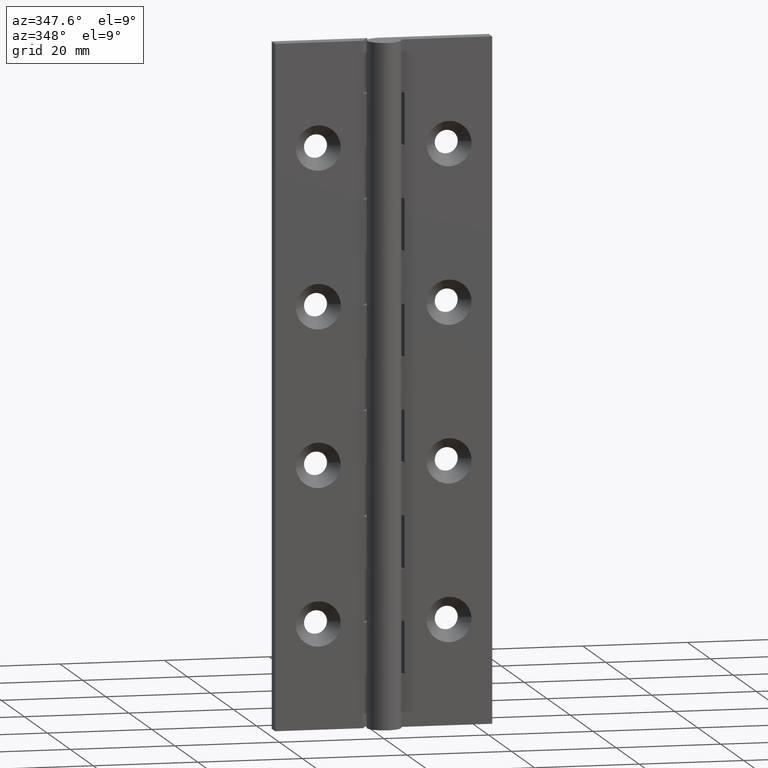
[diagram: clean part render]
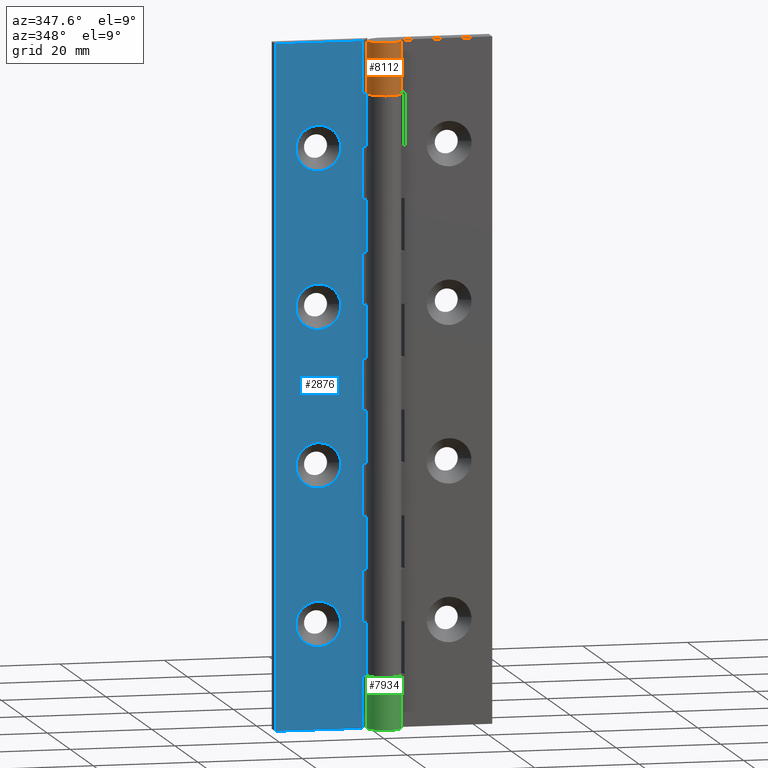
[diagram: same view with three faces highlighted in distinct colors, each labeled with its STEP entity id]
A machine part, auxiliary view with three faces highlighted in distinct colors.
Their STEP definitions:

[orange] entity #8112 — the highlighted face is a freeform B-spline surface patch.
#7731=CARTESIAN_POINT('',(3.250002000000000,0.0,119.999992000000010));
#7732=VERTEX_POINT('',#7731);
#7738=CARTESIAN_POINT('',(-5.969960E-016,3.250002000000000,119.999992000000010));
#7739=VERTEX_POINT('',#7738);
#7740=CARTESIAN_POINT('',(3.250002000000000,0.0,119.999992000000010));
#7741=CARTESIAN_POINT('',(3.250058843332602,-0.259235302768762,119.999992000000110));
#7742=CARTESIAN_POINT('',(3.194825938066627,-0.717862371413095,119.999991999999910));
#7743=CARTESIAN_POINT('',(2.960307660972153,-1.399606626254420,119.999992000000010));
#7744=CARTESIAN_POINT('',(2.545271396372375,-2.087556985835470,119.999992000000300));
#7745=CARTESIAN_POINT('',(1.911104825736447,-2.680283610159983,119.999991999998800));
#7746=CARTESIAN_POINT('',(1.125314587372286,-3.084798384035770,119.999992000001700));
#7747=CARTESIAN_POINT('',(0.400465609230191,-3.252218828666733,119.999991999999590));
#7748=CARTESIAN_POINT('',(-0.340493696966024,-3.256763602635062,119.999992000000400));
#7749=CARTESIAN_POINT('',(-0.989311126380403,-3.121482943577707,119.999991999999590));
#7750=CARTESIAN_POINT('',(-1.630139797581052,-2.837422052406377,119.999992000001000));
#7751=CARTESIAN_POINT('',(-2.120104957851495,-2.487814744809354,119.999991999999590));
#7752=CARTESIAN_POINT('',(-2.605826835977128,-1.983920769138647,119.999992000000200));
#7753=CARTESIAN_POINT('',(-3.030538727554097,-1.299677062303959,119.999991999999910));
#7754=CARTESIAN_POINT('',(-3.254240107487775,-0.460979936820447,119.999992000000110));
#7755=CARTESIAN_POINT('',(-3.256751942191720,0.380876257646216,119.999992000000010));
#7756=CARTESIAN_POINT('',(-3.084785001923860,1.125320745129792,119.999992000000300));
#7757=CARTESIAN_POINT('',(-2.680284794799579,1.911094221658586,119.999991999998200));
#7758=CARTESIAN_POINT('',(-2.046206700656675,2.589555788824574,119.999992000004000));
#7759=CARTESIAN_POINT('',(-1.116547263682331,3.116166636429339,119.999991999993800));
#7760=CARTESIAN_POINT('',(-0.398857979851053,3.250314064122798,119.999992000004800));
#7761=CARTESIAN_POINT('',(-5.969960E-016,3.250002000000000,119.999992000000010));
#7762=B_SPLINE_CURVE_WITH_KNOTS('',3,(#7740,#7741,#7742,#7743,#7744,#7745,#7746,#7747,#7748,#7749,#7750,#7751,#7752,#7753,#7754,#7755,#7756,#7757,#7758,#7759,#7760,#7761),.UNSPECIFIED.,.F.,.U.,(4,1,1,1,1,1,1,1,1,1,1,1,1,1,1,1,1,1,1,4),(0.000000900584890,0.777703323954160,1.375992129447301,2.153742879414933,3.170818852364903,3.948589965534355,4.786138993302330,5.384268576442519,6.162084416961495,6.760345081089699,7.478265212542495,7.956891529606531,8.854286972125300,9.871396629287062,10.529355977866320,11.366905111373571,12.144676255318450,13.161752748301369,14.118989412042550,15.315489814298481),.UNSPECIFIED.);
#7763=EDGE_CURVE('',#7732,#7739,#7762,.T.);
#7977=CARTESIAN_POINT('',(0.0,3.250002000000000,129.999991999999990));
#7978=VERTEX_POINT('',#7977);
#7984=CARTESIAN_POINT('',(3.250002000000000,0.0,129.999991999999990));
#7985=VERTEX_POINT('',#7984);
#7986=CARTESIAN_POINT('',(3.250002000000000,0.0,129.999991999999990));
#7987=CARTESIAN_POINT('',(3.250126541722850,-0.299119722925987,129.999992000000110));
#7988=CARTESIAN_POINT('',(3.186197574069851,-0.757699251531633,129.999991999999990));
#7989=CARTESIAN_POINT('',(2.946400268119132,-1.415196659680788,129.999991999999990));
#7990=CARTESIAN_POINT('',(2.599350185887110,-2.002525152513127,129.999992000000190));
#7991=CARTESIAN_POINT('',(2.093768571570589,-2.520616741313822,129.999991999999910));
#7992=CARTESIAN_POINT('',(1.506173649387451,-2.902809131635596,129.999991999999710));
#7993=CARTESIAN_POINT('',(0.836997744517684,-3.172911026107978,129.999992000000300));
#7994=CARTESIAN_POINT('',(0.099854855614900,-3.279903515339398,129.999992000000700));
#7995=CARTESIAN_POINT('',(-0.658352653947962,-3.207508463732577,129.999991999998600));
#7996=CARTESIAN_POINT('',(-1.251255185720932,-3.019682219946772,129.999992000000700));
#7997=CARTESIAN_POINT('',(-1.833224422317379,-2.708625678912956,129.999991999999910));
#7998=CARTESIAN_POINT('',(-2.331329212527613,-2.302423923799751,129.999992000000190));
#7999=CARTESIAN_POINT('',(-2.752226277715315,-1.766394148818207,129.999992000000110));
#8000=CARTESIAN_POINT('',(-3.080388055418496,-1.124417290567918,129.999991999999990));
#8001=CARTESIAN_POINT('',(-3.278595046428000,-0.323149294122056,129.999992000000110));
#8002=CARTESIAN_POINT('',(-3.241277538660847,0.542849693962500,129.999991999999990));
#8003=CARTESIAN_POINT('',(-3.009471734798527,1.290185554690569,129.999992000000390));
#8004=CARTESIAN_POINT('',(-2.626328112624008,1.971588136563843,129.999991999997290));
#8005=CARTESIAN_POINT('',(-2.028648254991396,2.599494082073933,129.999992000005790));
#8006=CARTESIAN_POINT('',(-1.116531277858881,3.116148526395587,129.999991999993110));
#8007=CARTESIAN_POINT('',(-0.398864664119787,3.250321222643124,129.999992000005590));
#8008=CARTESIAN_POINT('',(0.0,3.250002000000000,129.999991999999990));
#8009=B_SPLINE_CURVE_WITH_KNOTS('',3,(#7986,#7987,#7988,#7989,#7990,#7991,#7992,#7993,#7994,#7995,#7996,#7997,#7998,#7999,#8000,#8001,#8002,#8003,#8004,#8005,#8006,#8007,#8008),.UNSPECIFIED.,.F.,.U.,(4,1,1,1,1,1,1,1,1,1,1,1,1,1,1,1,1,1,1,1,4),(0.000000900584890,0.897318631712899,1.375992129447301,2.093900663776164,2.931496390251940,3.529787072808482,4.187902412925640,5.085294728259846,5.743301267278270,6.461170030126993,6.939831677601783,7.717575318248597,8.375695493262104,8.973980995145013,9.871396629287062,10.828505386619740,11.546389729966560,12.204517336434190,13.161752748301369,14.118989412042550,15.315489814298481),.UNSPECIFIED.);
#8010=EDGE_CURVE('',#7985,#7978,#8009,.T.);
#8065=CARTESIAN_POINT('',(3.250002000000000,0.0,119.999992000000010));
#8066=CARTESIAN_POINT('',(3.250002000000000,0.0,129.999991999999990));
#8067=QUASI_UNIFORM_CURVE('',1,(#8065,#8066),.UNSPECIFIED.,.F.,.U.);
#8068=EDGE_CURVE('',#7732,#7985,#8067,.T.);
#8080=CARTESIAN_POINT('',(3.248888305485210,0.085075134354485,119.749992000000010));
#8081=CARTESIAN_POINT('',(3.248888305485210,0.085075134354485,130.256241999999990));
#8082=CARTESIAN_POINT('',(3.336986186059084,-3.279247192095126,119.749991999999990));
#8083=CARTESIAN_POINT('',(3.336986186059084,-3.279247192095126,130.256242000000040));
#8084=CARTESIAN_POINT('',(-0.028361257822785,-3.249878249882402,119.749992000000010));
#8085=CARTESIAN_POINT('',(-0.028361257822785,-3.249878249882402,130.256241999999990));
#8086=CARTESIAN_POINT('',(-3.393708701704655,-3.220509307669678,119.749991999999990));
#8087=CARTESIAN_POINT('',(-3.393708701704655,-3.220509307669678,130.256242000000040));
#8088=CARTESIAN_POINT('',(-3.246908718237480,0.141763096176115,119.749992000000010));
#8089=CARTESIAN_POINT('',(-3.246908718237480,0.141763096176115,130.256241999999990));
#8090=CARTESIAN_POINT('',(-3.100108734770305,3.504035500021907,119.749991999999990));
#8091=CARTESIAN_POINT('',(-3.100108734770305,3.504035500021907,130.256242000000040));
#8092=CARTESIAN_POINT('',(0.254992218033685,3.239983328467333,119.749992000000010));
#8093=CARTESIAN_POINT('',(0.254992218033685,3.239983328467333,130.256241999999990));
#8101=(BOUNDED_SURFACE()B_SPLINE_SURFACE(1,2,((#8080,#8082,#8084,#8086,#8088,#8090,#8092),(#8081,#8083,#8085,#8087,#8089,#8091,#8093)),.UNSPECIFIED.,.F.,.F.,.U.)B_SPLINE_SURFACE_WITH_KNOTS((2,2),(3,2,2,3),(0.0,10.506250000000049),(0.0,5.518176006523390,11.036352013046780,16.554528019570171),.UNSPECIFIED.)GEOMETRIC_REPRESENTATION_ITEM()RATIONAL_B_SPLINE_SURFACE(((1.0,0.694658370458997,1.0,0.694658370458997,1.0,0.694658370458997,1.0),(1.0,0.694658370458997,1.0,0.694658370458997,1.0,0.694658370458997,1.0)))REPRESENTATION_ITEM('')SURFACE());
#8102=ORIENTED_EDGE('',*,*,#7763,.F.);
#8103=ORIENTED_EDGE('',*,*,#8068,.T.);
#8104=ORIENTED_EDGE('',*,*,#8010,.T.);
#8105=CARTESIAN_POINT('',(-5.969960E-016,3.250002000000000,119.999992000000010));
#8106=CARTESIAN_POINT('',(0.0,3.250002000000000,129.999991999999990));
#8107=QUASI_UNIFORM_CURVE('',1,(#8105,#8106),.UNSPECIFIED.,.F.,.U.);
#8108=EDGE_CURVE('',#7739,#7978,#8107,.T.);
#8109=ORIENTED_EDGE('',*,*,#8108,.F.);
#8110=EDGE_LOOP('',(#8102,#8103,#8104,#8109));
#8111=FACE_OUTER_BOUND('',#8110,.T.);
#8112=ADVANCED_FACE('',(#8111),#8101,.T.);

[blue] entity #2876 — the highlighted face is a freeform B-spline surface patch.
#248=CARTESIAN_POINT('',(-8.213247464866484,0.250001999797880,110.337366113177500));
#249=VERTEX_POINT('',#248);
#255=CARTESIAN_POINT('',(-12.499991999999899,0.250002000000000,114.299992000000400));
#256=VERTEX_POINT('',#255);
#257=CARTESIAN_POINT('',(-12.499991999999899,0.250002000000000,114.299992000000400));
#258=CARTESIAN_POINT('',(-8.525112887193302,0.250001999898940,114.299992000008330));
#259=CARTESIAN_POINT('',(-8.213247464866484,0.250001999797880,110.337366113177500));
#267=(BOUNDED_CURVE()B_SPLINE_CURVE(2,(#257,#258,#259),.UNSPECIFIED.,.F.,.U.)B_SPLINE_CURVE_WITH_KNOTS((3,3),(0.0,0.236331300571524),.UNSPECIFIED.)CURVE()GEOMETRIC_REPRESENTATION_ITEM()RATIONAL_B_SPLINE_CURVE((1.0,0.723120658676947,0.969723356044007))REPRESENTATION_ITEM(''));
#268=EDGE_CURVE('',#256,#249,#267,.T.);
#270=CARTESIAN_POINT('',(-16.786736535133318,0.250001999797881,109.662617886823300));
#271=VERTEX_POINT('',#270);
#272=CARTESIAN_POINT('',(-16.786736535133326,0.250001999797881,109.662617886823370));
#273=CARTESIAN_POINT('',(-16.799992000197740,0.250001999801551,109.831044539082530));
#274=CARTESIAN_POINT('',(-16.799992000193789,0.250001999805522,109.999991999985200));
#275=CARTESIAN_POINT('',(-16.799992000093045,0.250001999906582,114.299991999993100));
#276=CARTESIAN_POINT('',(-12.499991999999899,0.250002000000000,114.299992000000400));
#284=(BOUNDED_CURVE()B_SPLINE_CURVE(2,(#272,#273,#274,#275,#276),.UNSPECIFIED.,.F.,.U.)B_SPLINE_CURVE_WITH_KNOTS((3,2,3),(0.736331300571523,0.750000000000000,1.0),.UNSPECIFIED.)CURVE()GEOMETRIC_REPRESENTATION_ITEM()RATIONAL_B_SPLINE_CURVE((0.969723356044004,0.983986122509599,1.0,0.707106781186547,1.0))REPRESENTATION_ITEM(''));
#285=EDGE_CURVE('',#271,#256,#284,.T.);
#391=CARTESIAN_POINT('',(-12.499991999999899,0.250002000000000,105.699992000000410));
#392=VERTEX_POINT('',#391);
#393=CARTESIAN_POINT('',(-12.499991999999899,0.250002000000000,105.699992000000410));
#394=CARTESIAN_POINT('',(-16.474871112806493,0.250001999898941,105.699991999992480));
#395=CARTESIAN_POINT('',(-16.786736535133322,0.250001999797881,109.662617886823330));
#403=(BOUNDED_CURVE()B_SPLINE_CURVE(2,(#393,#394,#395),.UNSPECIFIED.,.F.,.U.)B_SPLINE_CURVE_WITH_KNOTS((3,3),(0.500000000000000,0.736331300571524),.UNSPECIFIED.)CURVE()GEOMETRIC_REPRESENTATION_ITEM()RATIONAL_B_SPLINE_CURVE((1.0,0.723120658676947,0.969723356044006))REPRESENTATION_ITEM(''));
#404=EDGE_CURVE('',#392,#271,#403,.T.);
#406=CARTESIAN_POINT('',(-8.213247464866484,0.250001999797880,110.337366113177410));
#407=CARTESIAN_POINT('',(-8.199991999802064,0.250001999801551,110.168939460918250));
#408=CARTESIAN_POINT('',(-8.199991999806022,0.250001999805522,109.999992000015690));
#409=CARTESIAN_POINT('',(-8.199991999906773,0.250001999906581,105.699992000007740));
#410=CARTESIAN_POINT('',(-12.499991999999899,0.250002000000000,105.699992000000410));
#418=(BOUNDED_CURVE()B_SPLINE_CURVE(2,(#406,#407,#408,#409,#410),.UNSPECIFIED.,.F.,.U.)B_SPLINE_CURVE_WITH_KNOTS((3,2,3),(0.236331300571524,0.250000000000000,0.500000000000000),.UNSPECIFIED.)CURVE()GEOMETRIC_REPRESENTATION_ITEM()RATIONAL_B_SPLINE_CURVE((0.969723356044007,0.983986122509601,1.0,0.707106781186547,1.0))REPRESENTATION_ITEM(''));
#419=EDGE_CURVE('',#249,#392,#418,.T.);
#584=CARTESIAN_POINT('',(-8.213247464866486,0.250001999797880,80.337366113177367));
#585=VERTEX_POINT('',#584);
#591=CARTESIAN_POINT('',(-12.499991999999899,0.250002000000000,84.299992000000316));
#592=VERTEX_POINT('',#591);
#593=CARTESIAN_POINT('',(-12.499991999999899,0.250002000000000,84.299992000000316));
#594=CARTESIAN_POINT('',(-8.525112887193318,0.250001999898940,84.299992000008245));
#595=CARTESIAN_POINT('',(-8.213247464866486,0.250001999797880,80.337366113177367));
#603=(BOUNDED_CURVE()B_SPLINE_CURVE(2,(#593,#594,#595),.UNSPECIFIED.,.F.,.U.)B_SPLINE_CURVE_WITH_KNOTS((3,3),(0.0,0.236331300571524),.UNSPECIFIED.)CURVE()GEOMETRIC_REPRESENTATION_ITEM()RATIONAL_B_SPLINE_CURVE((1.0,0.723120658676947,0.969723356044006))REPRESENTATION_ITEM(''));
#604=EDGE_CURVE('',#592,#585,#603,.T.);
#606=CARTESIAN_POINT('',(-16.786736535133318,0.250001999797881,79.662617886823256));
#607=VERTEX_POINT('',#606);
#608=CARTESIAN_POINT('',(-16.786736535133322,0.250001999797881,79.662617886823256));
#609=CARTESIAN_POINT('',(-16.799992000197737,0.250001999801552,79.831044539082498));
#610=CARTESIAN_POINT('',(-16.799992000193779,0.250001999805523,79.999991999985070));
#611=CARTESIAN_POINT('',(-16.799992000093027,0.250001999906582,84.299991999992997));
#612=CARTESIAN_POINT('',(-12.499991999999899,0.250002000000000,84.299992000000316));
#620=(BOUNDED_CURVE()B_SPLINE_CURVE(2,(#608,#609,#610,#611,#612),.UNSPECIFIED.,.F.,.U.)B_SPLINE_CURVE_WITH_KNOTS((3,2,3),(0.736331300571525,0.750000000000000,1.0),.UNSPECIFIED.)CURVE()GEOMETRIC_REPRESENTATION_ITEM()RATIONAL_B_SPLINE_CURVE((0.969723356044008,0.983986122509601,1.0,0.707106781186547,1.0))REPRESENTATION_ITEM(''));
#621=EDGE_CURVE('',#607,#592,#620,.T.);
#727=CARTESIAN_POINT('',(-12.499991999999899,0.250002000000000,75.699992000000307));
#728=VERTEX_POINT('',#727);
#729=CARTESIAN_POINT('',(-12.499991999999899,0.250002000000000,75.699992000000307));
#730=CARTESIAN_POINT('',(-16.474871112806518,0.250001999898941,75.699991999992363));
#731=CARTESIAN_POINT('',(-16.786736535133315,0.250001999797881,79.662617886823256));
#739=(BOUNDED_CURVE()B_SPLINE_CURVE(2,(#729,#730,#731),.UNSPECIFIED.,.F.,.U.)B_SPLINE_CURVE_WITH_KNOTS((3,3),(0.500000000000000,0.736331300571525),.UNSPECIFIED.)CURVE()GEOMETRIC_REPRESENTATION_ITEM()RATIONAL_B_SPLINE_CURVE((1.0,0.723120658676946,0.969723356044008))REPRESENTATION_ITEM(''));
#740=EDGE_CURVE('',#728,#607,#739,.T.);
#742=CARTESIAN_POINT('',(-8.213247464866486,0.250001999797880,80.337366113177367));
#743=CARTESIAN_POINT('',(-8.199991999802064,0.250001999801551,80.168939460918125));
#744=CARTESIAN_POINT('',(-8.199991999806024,0.250001999805522,79.999992000015538));
#745=CARTESIAN_POINT('',(-8.199991999906773,0.250001999906581,75.699992000007626));
#746=CARTESIAN_POINT('',(-12.499991999999899,0.250002000000000,75.699992000000307));
#754=(BOUNDED_CURVE()B_SPLINE_CURVE(2,(#742,#743,#744,#745,#746),.UNSPECIFIED.,.F.,.U.)B_SPLINE_CURVE_WITH_KNOTS((3,2,3),(0.236331300571524,0.250000000000000,0.500000000000000),.UNSPECIFIED.)CURVE()GEOMETRIC_REPRESENTATION_ITEM()RATIONAL_B_SPLINE_CURVE((0.969723356044006,0.983986122509600,1.0,0.707106781186547,1.0))REPRESENTATION_ITEM(''));
#755=EDGE_CURVE('',#585,#728,#754,.T.);
#920=CARTESIAN_POINT('',(-8.213247464866488,0.250001999797881,50.337366113177161));
#921=VERTEX_POINT('',#920);
#927=CARTESIAN_POINT('',(-12.499991999999899,0.250002000000000,54.299992000000103));
#928=VERTEX_POINT('',#927);
#929=CARTESIAN_POINT('',(-12.499991999999899,0.250002000000000,54.299992000000103));
#930=CARTESIAN_POINT('',(-8.525112887193311,0.250001999898941,54.299992000008011));
#931=CARTESIAN_POINT('',(-8.213247464866488,0.250001999797881,50.337366113177161));
#939=(BOUNDED_CURVE()B_SPLINE_CURVE(2,(#929,#930,#931),.UNSPECIFIED.,.F.,.U.)B_SPLINE_CURVE_WITH_KNOTS((3,3),(0.0,0.236331300571524),.UNSPECIFIED.)CURVE()GEOMETRIC_REPRESENTATION_ITEM()RATIONAL_B_SPLINE_CURVE((1.0,0.723120658676947,0.969723356044006))REPRESENTATION_ITEM(''));
#940=EDGE_CURVE('',#928,#921,#939,.T.);
#942=CARTESIAN_POINT('',(-16.786736535133318,0.250001999797881,49.662617886823028));
#943=VERTEX_POINT('',#942);
#944=CARTESIAN_POINT('',(-16.786736535133318,0.250001999797881,49.662617886823035));
#945=CARTESIAN_POINT('',(-16.799992000197729,0.250001999801551,49.831044539082257));
#946=CARTESIAN_POINT('',(-16.799992000193779,0.250001999805522,49.999991999984843));
#947=CARTESIAN_POINT('',(-16.799992000093027,0.250001999906581,54.299991999992756));
#948=CARTESIAN_POINT('',(-12.499991999999899,0.250002000000000,54.299992000000103));
#956=(BOUNDED_CURVE()B_SPLINE_CURVE(2,(#944,#945,#946,#947,#948),.UNSPECIFIED.,.F.,.U.)B_SPLINE_CURVE_WITH_KNOTS((3,2,3),(0.736331300571524,0.750000000000000,1.0),.UNSPECIFIED.)CURVE()GEOMETRIC_REPRESENTATION_ITEM()RATIONAL_B_SPLINE_CURVE((0.969723356044007,0.983986122509600,1.0,0.707106781186547,1.0))REPRESENTATION_ITEM(''));
#957=EDGE_CURVE('',#943,#928,#956,.T.);
#1063=CARTESIAN_POINT('',(-12.499991999999899,0.250002000000000,45.699992000000101));
#1064=VERTEX_POINT('',#1063);
#1065=CARTESIAN_POINT('',(-12.499991999999899,0.250002000000000,45.699992000000101));
#1066=CARTESIAN_POINT('',(-16.474871112806490,0.250001999898940,45.699991999992164));
#1067=CARTESIAN_POINT('',(-16.786736535133315,0.250001999797880,49.662617886823021));
#1075=(BOUNDED_CURVE()B_SPLINE_CURVE(2,(#1065,#1066,#1067),.UNSPECIFIED.,.F.,.U.)B_SPLINE_CURVE_WITH_KNOTS((3,3),(0.500000000000000,0.736331300571524),.UNSPECIFIED.)CURVE()GEOMETRIC_REPRESENTATION_ITEM()RATIONAL_B_SPLINE_CURVE((1.0,0.723120658676947,0.969723356044006))REPRESENTATION_ITEM(''));
#1076=EDGE_CURVE('',#1064,#943,#1075,.T.);
#1078=CARTESIAN_POINT('',(-8.213247464866488,0.250001999797881,50.337366113177161));
#1079=CARTESIAN_POINT('',(-8.199991999802066,0.250001999801551,50.168939460917926));
#1080=CARTESIAN_POINT('',(-8.199991999806024,0.250001999805522,49.999992000015347));
#1081=CARTESIAN_POINT('',(-8.199991999906773,0.250001999906582,45.699992000007413));
#1082=CARTESIAN_POINT('',(-12.499991999999899,0.250002000000000,45.699992000000101));
#1090=(BOUNDED_CURVE()B_SPLINE_CURVE(2,(#1078,#1079,#1080,#1081,#1082),.UNSPECIFIED.,.F.,.U.)B_SPLINE_CURVE_WITH_KNOTS((3,2,3),(0.236331300571524,0.250000000000000,0.500000000000000),.UNSPECIFIED.)CURVE()GEOMETRIC_REPRESENTATION_ITEM()RATIONAL_B_SPLINE_CURVE((0.969723356044007,0.983986122509600,1.0,0.707106781186547,1.0))REPRESENTATION_ITEM(''));
#1091=EDGE_CURVE('',#921,#1064,#1090,.T.);
#1256=CARTESIAN_POINT('',(-8.213247464866484,0.250001999797880,20.337366113176959));
#1257=VERTEX_POINT('',#1256);
#1263=CARTESIAN_POINT('',(-12.499991999999899,0.250002000000000,24.299991999999900));
#1264=VERTEX_POINT('',#1263);
#1265=CARTESIAN_POINT('',(-12.499991999999899,0.250002000000000,24.299991999999900));
#1266=CARTESIAN_POINT('',(-8.525112887193300,0.250001999898940,24.299992000007840));
#1267=CARTESIAN_POINT('',(-8.213247464866484,0.250001999797880,20.337366113176952));
#1275=(BOUNDED_CURVE()B_SPLINE_CURVE(2,(#1265,#1266,#1267),.UNSPECIFIED.,.F.,.U.)B_SPLINE_CURVE_WITH_KNOTS((3,3),(0.0,0.236331300571525),.UNSPECIFIED.)CURVE()GEOMETRIC_REPRESENTATION_ITEM()RATIONAL_B_SPLINE_CURVE((1.0,0.723120658676946,0.969723356044008))REPRESENTATION_ITEM(''));
#1276=EDGE_CURVE('',#1264,#1257,#1275,.T.);
#1278=CARTESIAN_POINT('',(-16.786736535133318,0.250001999797880,19.662617886822840));
#1279=VERTEX_POINT('',#1278);
#1280=CARTESIAN_POINT('',(-16.786736535133326,0.250001999797880,19.662617886822837));
#1281=CARTESIAN_POINT('',(-16.799992000197737,0.250001999801550,19.831044539082065));
#1282=CARTESIAN_POINT('',(-16.799992000193779,0.250001999805521,19.999991999984641));
#1283=CARTESIAN_POINT('',(-16.799992000093027,0.250001999906581,24.299991999992571));
#1284=CARTESIAN_POINT('',(-12.499991999999899,0.250002000000000,24.299991999999900));
#1292=(BOUNDED_CURVE()B_SPLINE_CURVE(2,(#1280,#1281,#1282,#1283,#1284),.UNSPECIFIED.,.F.,.U.)B_SPLINE_CURVE_WITH_KNOTS((3,2,3),(0.736331300571524,0.750000000000000,1.0),.UNSPECIFIED.)CURVE()GEOMETRIC_REPRESENTATION_ITEM()RATIONAL_B_SPLINE_CURVE((0.969723356044007,0.983986122509601,1.0,0.707106781186547,1.0))REPRESENTATION_ITEM(''));
#1293=EDGE_CURVE('',#1279,#1264,#1292,.T.);
#1399=CARTESIAN_POINT('',(-12.499991999999899,0.250002000000000,15.699991999999900));
#1400=VERTEX_POINT('',#1399);
#1401=CARTESIAN_POINT('',(-12.499991999999899,0.250002000000000,15.699991999999900));
#1402=CARTESIAN_POINT('',(-16.474871112806497,0.250001999898940,15.699991999991971));
#1403=CARTESIAN_POINT('',(-16.786736535133326,0.250001999797880,19.662617886822837));
#1411=(BOUNDED_CURVE()B_SPLINE_CURVE(2,(#1401,#1402,#1403),.UNSPECIFIED.,.F.,.U.)B_SPLINE_CURVE_WITH_KNOTS((3,3),(0.500000000000000,0.736331300571524),.UNSPECIFIED.)CURVE()GEOMETRIC_REPRESENTATION_ITEM()RATIONAL_B_SPLINE_CURVE((1.0,0.723120658676947,0.969723356044007))REPRESENTATION_ITEM(''));
#1412=EDGE_CURVE('',#1400,#1279,#1411,.T.);
#1414=CARTESIAN_POINT('',(-8.213247464866486,0.250001999797880,20.337366113176955));
#1415=CARTESIAN_POINT('',(-8.199991999802064,0.250001999801551,20.168939460917734));
#1416=CARTESIAN_POINT('',(-8.199991999806022,0.250001999805521,19.999992000015158));
#1417=CARTESIAN_POINT('',(-8.199991999906773,0.250001999906581,15.699992000007233));
#1418=CARTESIAN_POINT('',(-12.499991999999899,0.250002000000000,15.699991999999900));
#1426=(BOUNDED_CURVE()B_SPLINE_CURVE(2,(#1414,#1415,#1416,#1417,#1418),.UNSPECIFIED.,.F.,.U.)B_SPLINE_CURVE_WITH_KNOTS((3,2,3),(0.236331300571525,0.250000000000000,0.500000000000000),.UNSPECIFIED.)CURVE()GEOMETRIC_REPRESENTATION_ITEM()RATIONAL_B_SPLINE_CURVE((0.969723356044008,0.983986122509601,1.0,0.707106781186547,1.0))REPRESENTATION_ITEM(''));
#1427=EDGE_CURVE('',#1257,#1400,#1426,.T.);
#2649=CARTESIAN_POINT('',(-21.624116466581530,0.250002000000000,-6.493499348434797));
#2650=CARTESIAN_POINT('',(-21.624116466581530,0.250002000000000,136.493494835306310));
#2651=CARTESIAN_POINT('',(-2.375877064032071,0.250002000000000,-6.493499348434797));
#2652=CARTESIAN_POINT('',(-2.375877064032071,0.250002000000000,136.493494835306310));
#2653=B_SPLINE_SURFACE_WITH_KNOTS('',1,1,((#2649,#2651),(#2650,#2652)),.UNSPECIFIED.,.F.,.F.,.U.,(2,2),(2,2),(0.0,142.986994183741100),(0.0,19.248239402549459),.UNSPECIFIED.);
#2654=CARTESIAN_POINT('',(-3.999982999999821,0.250002000000000,2.775558E-014));
#2655=VERTEX_POINT('',#2654);
#2656=CARTESIAN_POINT('',(-3.999982999999821,0.250002000000000,9.999992000000349));
#2657=VERTEX_POINT('',#2656);
#2658=CARTESIAN_POINT('',(-3.999982999999821,0.250002000000000,2.775558E-014));
#2659=CARTESIAN_POINT('',(-3.999982999999821,0.250002000000000,9.999992000000349));
#2660=QUASI_UNIFORM_CURVE('',1,(#2658,#2659),.UNSPECIFIED.,.F.,.U.);
#2661=EDGE_CURVE('',#2655,#2657,#2660,.T.);
#2662=ORIENTED_EDGE('',*,*,#2661,.T.);
#2663=CARTESIAN_POINT('',(-3.250002000000000,0.250002000000000,9.999992000000349));
#2664=VERTEX_POINT('',#2663);
#2665=CARTESIAN_POINT('',(-3.250002000000000,0.250002000000000,9.999992000000349));
#2666=CARTESIAN_POINT('',(-3.999982999999821,0.250002000000000,9.999992000000349));
#2667=QUASI_UNIFORM_CURVE('',1,(#2665,#2666),.UNSPECIFIED.,.F.,.U.);
#2668=EDGE_CURVE('',#2664,#2657,#2667,.T.);
#2669=ORIENTED_EDGE('',*,*,#2668,.F.);
#2670=CARTESIAN_POINT('',(-3.250002000000000,0.250002000000000,19.999992000000351));
#2671=VERTEX_POINT('',#2670);
#2672=CARTESIAN_POINT('',(-3.250002000000000,0.250002000000000,9.999992000000349));
#2673=CARTESIAN_POINT('',(-3.250002000000000,0.250002000000000,19.999992000000351));
#2674=QUASI_UNIFORM_CURVE('',1,(#2672,#2673),.UNSPECIFIED.,.F.,.U.);
#2675=EDGE_CURVE('',#2664,#2671,#2674,.T.);
#2676=ORIENTED_EDGE('',*,*,#2675,.T.);
#2677=CARTESIAN_POINT('',(-3.999982999999821,0.250002000000000,19.999992000000351));
#2678=VERTEX_POINT('',#2677);
#2679=CARTESIAN_POINT('',(-3.250002000000000,0.250002000000000,19.999992000000351));
#2680=CARTESIAN_POINT('',(-3.999982999999821,0.250002000000000,19.999992000000351));
#2681=QUASI_UNIFORM_CURVE('',1,(#2679,#2680),.UNSPECIFIED.,.F.,.U.);
#2682=EDGE_CURVE('',#2671,#2678,#2681,.T.);
#2683=ORIENTED_EDGE('',*,*,#2682,.T.);
#2684=CARTESIAN_POINT('',(-3.999982999999821,0.250002000000000,29.999992000000251));
#2685=VERTEX_POINT('',#2684);
#2686=CARTESIAN_POINT('',(-3.999982999999821,0.250002000000000,19.999992000000351));
#2687=CARTESIAN_POINT('',(-3.999982999999821,0.250002000000000,29.999992000000251));
#2688=QUASI_UNIFORM_CURVE('',1,(#2686,#2687),.UNSPECIFIED.,.F.,.U.);
#2689=EDGE_CURVE('',#2678,#2685,#2688,.T.);
#2690=ORIENTED_EDGE('',*,*,#2689,.T.);
#2691=CARTESIAN_POINT('',(-3.250002000000000,0.250002000000000,29.999992000000251));
#2692=VERTEX_POINT('',#2691);
#2693=CARTESIAN_POINT('',(-3.250002000000000,0.250002000000000,29.999992000000251));
#2694=CARTESIAN_POINT('',(-3.999982999999821,0.250002000000000,29.999992000000251));
#2695=QUASI_UNIFORM_CURVE('',1,(#2693,#2694),.UNSPECIFIED.,.F.,.U.);
#2696=EDGE_CURVE('',#2692,#2685,#2695,.T.);
#2697=ORIENTED_EDGE('',*,*,#2696,.F.);
#2698=CARTESIAN_POINT('',(-3.250002000000000,0.250002000000000,39.999992000000248));
#2699=VERTEX_POINT('',#2698);
#2700=CARTESIAN_POINT('',(-3.250002000000000,0.250002000000000,29.999992000000251));
#2701=CARTESIAN_POINT('',(-3.250002000000000,0.250002000000000,39.999992000000248));
#2702=QUASI_UNIFORM_CURVE('',1,(#2700,#2701),.UNSPECIFIED.,.F.,.U.);
#2703=EDGE_CURVE('',#2692,#2699,#2702,.T.);
#2704=ORIENTED_EDGE('',*,*,#2703,.T.);
#2705=CARTESIAN_POINT('',(-3.999982999999821,0.250002000000000,39.999992000000248));
#2706=VERTEX_POINT('',#2705);
#2707=CARTESIAN_POINT('',(-3.250002000000000,0.250002000000000,39.999992000000248));
#2708=CARTESIAN_POINT('',(-3.999982999999821,0.250002000000000,39.999992000000248));
#2709=QUASI_UNIFORM_CURVE('',1,(#2707,#2708),.UNSPECIFIED.,.F.,.U.);
#2710=EDGE_CURVE('',#2699,#2706,#2709,.T.);
#2711=ORIENTED_EDGE('',*,*,#2710,.T.);
#2712=CARTESIAN_POINT('',(-3.999982999999821,0.250002000000000,49.999992000000297));
#2713=VERTEX_POINT('',#2712);
#2714=CARTESIAN_POINT('',(-3.999982999999821,0.250002000000000,39.999992000000248));
#2715=CARTESIAN_POINT('',(-3.999982999999821,0.250002000000000,49.999992000000297));
#2716=QUASI_UNIFORM_CURVE('',1,(#2714,#2715),.UNSPECIFIED.,.F.,.U.);
#2717=EDGE_CURVE('',#2706,#2713,#2716,.T.);
#2718=ORIENTED_EDGE('',*,*,#2717,.T.);
#2719=CARTESIAN_POINT('',(-3.250002000000000,0.250002000000000,49.999992000000297));
#2720=VERTEX_POINT('',#2719);
#2721=CARTESIAN_POINT('',(-3.250002000000000,0.250002000000000,49.999992000000297));
#2722=CARTESIAN_POINT('',(-3.999982999999821,0.250002000000000,49.999992000000297));
#2723=QUASI_UNIFORM_CURVE('',1,(#2721,#2722),.UNSPECIFIED.,.F.,.U.);
#2724=EDGE_CURVE('',#2720,#2713,#2723,.T.);
#2725=ORIENTED_EDGE('',*,*,#2724,.F.);
#2726=CARTESIAN_POINT('',(-3.250002000000000,0.250002000000000,59.999992000000297));
#2727=VERTEX_POINT('',#2726);
#2728=CARTESIAN_POINT('',(-3.250002000000000,0.250002000000000,49.999992000000297));
#2729=CARTESIAN_POINT('',(-3.250002000000000,0.250002000000000,59.999992000000297));
#2730=QUASI_UNIFORM_CURVE('',1,(#2728,#2729),.UNSPECIFIED.,.F.,.U.);
#2731=EDGE_CURVE('',#2720,#2727,#2730,.T.);
#2732=ORIENTED_EDGE('',*,*,#2731,.T.);
#2733=CARTESIAN_POINT('',(-3.999982999999821,0.250002000000000,59.999992000000297));
#2734=VERTEX_POINT('',#2733);
#2735=CARTESIAN_POINT('',(-3.250002000000000,0.250002000000000,59.999992000000297));
#2736=CARTESIAN_POINT('',(-3.999982999999821,0.250002000000000,59.999992000000297));
#2737=QUASI_UNIFORM_CURVE('',1,(#2735,#2736),.UNSPECIFIED.,.F.,.U.);
#2738=EDGE_CURVE('',#2727,#2734,#2737,.T.);
#2739=ORIENTED_EDGE('',*,*,#2738,.T.);
#2740=CARTESIAN_POINT('',(-3.999982999999821,0.250002000000000,69.999992000000191));
#2741=VERTEX_POINT('',#2740);
#2742=CARTESIAN_POINT('',(-3.999982999999821,0.250002000000000,59.999992000000297));
#2743=CARTESIAN_POINT('',(-3.999982999999821,0.250002000000000,69.999992000000191));
#2744=QUASI_UNIFORM_CURVE('',1,(#2742,#2743),.UNSPECIFIED.,.F.,.U.);
#2745=EDGE_CURVE('',#2734,#2741,#2744,.T.);
#2746=ORIENTED_EDGE('',*,*,#2745,.T.);
#2747=CARTESIAN_POINT('',(-3.250002000000000,0.250002000000000,69.999992000000191));
#2748=VERTEX_POINT('',#2747);
#2749=CARTESIAN_POINT('',(-3.250002000000000,0.250002000000000,69.999992000000191));
#2750=CARTESIAN_POINT('',(-3.999982999999821,0.250002000000000,69.999992000000191));
#2751=QUASI_UNIFORM_CURVE('',1,(#2749,#2750),.UNSPECIFIED.,.F.,.U.);
#2752=EDGE_CURVE('',#2748,#2741,#2751,.T.);
#2753=ORIENTED_EDGE('',*,*,#2752,.F.);
#2754=CARTESIAN_POINT('',(-3.250002000000000,0.250002000000000,79.999992000000205));
#2755=VERTEX_POINT('',#2754);
#2756=CARTESIAN_POINT('',(-3.250002000000000,0.250002000000000,69.999992000000191));
#2757=CARTESIAN_POINT('',(-3.250002000000000,0.250002000000000,79.999992000000205));
#2758=QUASI_UNIFORM_CURVE('',1,(#2756,#2757),.UNSPECIFIED.,.F.,.U.);
#2759=EDGE_CURVE('',#2748,#2755,#2758,.T.);
#2760=ORIENTED_EDGE('',*,*,#2759,.T.);
#2761=CARTESIAN_POINT('',(-3.999982999999821,0.250002000000000,79.999992000000205));
#2762=VERTEX_POINT('',#2761);
#2763=CARTESIAN_POINT('',(-3.250002000000000,0.250002000000000,79.999992000000205));
#2764=CARTESIAN_POINT('',(-3.999982999999821,0.250002000000000,79.999992000000205));
#2765=QUASI_UNIFORM_CURVE('',1,(#2763,#2764),.UNSPECIFIED.,.F.,.U.);
#2766=EDGE_CURVE('',#2755,#2762,#2765,.T.);
#2767=ORIENTED_EDGE('',*,*,#2766,.T.);
#2768=CARTESIAN_POINT('',(-3.999982999999821,0.250002000000000,89.999992000000091));
#2769=VERTEX_POINT('',#2768);
#2770=CARTESIAN_POINT('',(-3.999982999999821,0.250002000000000,79.999992000000205));
#2771=CARTESIAN_POINT('',(-3.999982999999821,0.250002000000000,89.999992000000091));
#2772=QUASI_UNIFORM_CURVE('',1,(#2770,#2771),.UNSPECIFIED.,.F.,.U.);
#2773=EDGE_CURVE('',#2762,#2769,#2772,.T.);
#2774=ORIENTED_EDGE('',*,*,#2773,.T.);
#2775=CARTESIAN_POINT('',(-3.250002000000000,0.250002000000000,89.999992000000091));
#2776=VERTEX_POINT('',#2775);
#2777=CARTESIAN_POINT('',(-3.250002000000000,0.250002000000000,89.999992000000091));
#2778=CARTESIAN_POINT('',(-3.999982999999821,0.250002000000000,89.999992000000091));
#2779=QUASI_UNIFORM_CURVE('',1,(#2777,#2778),.UNSPECIFIED.,.F.,.U.);
#2780=EDGE_CURVE('',#2776,#2769,#2779,.T.);
#2781=ORIENTED_EDGE('',*,*,#2780,.F.);
#2782=CARTESIAN_POINT('',(-3.250002000000000,0.250002000000000,99.999992000000091));
#2783=VERTEX_POINT('',#2782);
#2784=CARTESIAN_POINT('',(-3.250002000000000,0.250002000000000,89.999992000000091));
#2785=CARTESIAN_POINT('',(-3.250002000000000,0.250002000000000,99.999992000000091));
#2786=QUASI_UNIFORM_CURVE('',1,(#2784,#2785),.UNSPECIFIED.,.F.,.U.);
#2787=EDGE_CURVE('',#2776,#2783,#2786,.T.);
#2788=ORIENTED_EDGE('',*,*,#2787,.T.);
#2789=CARTESIAN_POINT('',(-3.999982999999821,0.250002000000000,99.999992000000091));
#2790=VERTEX_POINT('',#2789);
#2791=CARTESIAN_POINT('',(-3.250002000000000,0.250002000000000,99.999992000000091));
#2792=CARTESIAN_POINT('',(-3.999982999999821,0.250002000000000,99.999992000000091));
#2793=QUASI_UNIFORM_CURVE('',1,(#2791,#2792),.UNSPECIFIED.,.F.,.U.);
#2794=EDGE_CURVE('',#2783,#2790,#2793,.T.);
#2795=ORIENTED_EDGE('',*,*,#2794,.T.);
#2796=CARTESIAN_POINT('',(-3.999982999999821,0.250002000000000,109.999992000000010));
#2797=VERTEX_POINT('',#2796);
#2798=CARTESIAN_POINT('',(-3.999982999999821,0.250002000000000,99.999992000000091));
#2799=CARTESIAN_POINT('',(-3.999982999999821,0.250002000000000,109.999992000000010));
#2800=QUASI_UNIFORM_CURVE('',1,(#2798,#2799),.UNSPECIFIED.,.F.,.U.);
#2801=EDGE_CURVE('',#2790,#2797,#2800,.T.);
#2802=ORIENTED_EDGE('',*,*,#2801,.T.);
#2803=CARTESIAN_POINT('',(-3.250002000000000,0.250002000000000,109.999992000000010));
#2804=VERTEX_POINT('',#2803);
#2805=CARTESIAN_POINT('',(-3.250002000000000,0.250002000000000,109.999992000000010));
#2806=CARTESIAN_POINT('',(-3.999982999999821,0.250002000000000,109.999992000000010));
#2807=QUASI_UNIFORM_CURVE('',1,(#2805,#2806),.UNSPECIFIED.,.F.,.U.);
#2808=EDGE_CURVE('',#2804,#2797,#2807,.T.);
#2809=ORIENTED_EDGE('',*,*,#2808,.F.);
#2810=CARTESIAN_POINT('',(-3.250002000000000,0.250002000000000,119.999992000000010));
#2811=VERTEX_POINT('',#2810);
#2812=CARTESIAN_POINT('',(-3.250002000000000,0.250002000000000,109.999992000000010));
#2813=CARTESIAN_POINT('',(-3.250002000000000,0.250002000000000,119.999992000000010));
#2814=QUASI_UNIFORM_CURVE('',1,(#2812,#2813),.UNSPECIFIED.,.F.,.U.);
#2815=EDGE_CURVE('',#2804,#2811,#2814,.T.);
#2816=ORIENTED_EDGE('',*,*,#2815,.T.);
#2817=CARTESIAN_POINT('',(-3.999982999999821,0.250002000000000,119.999992000000010));
#2818=VERTEX_POINT('',#2817);
#2819=CARTESIAN_POINT('',(-3.250002000000000,0.250002000000000,119.999992000000010));
#2820=CARTESIAN_POINT('',(-3.999982999999821,0.250002000000000,119.999992000000010));
#2821=QUASI_UNIFORM_CURVE('',1,(#2819,#2820),.UNSPECIFIED.,.F.,.U.);
#2822=EDGE_CURVE('',#2811,#2818,#2821,.T.);
#2823=ORIENTED_EDGE('',*,*,#2822,.T.);
#2824=CARTESIAN_POINT('',(-3.999982999999821,0.250002000000000,129.999991999999990));
#2825=VERTEX_POINT('',#2824);
#2826=CARTESIAN_POINT('',(-3.999982999999821,0.250002000000000,119.999992000000010));
#2827=CARTESIAN_POINT('',(-3.999982999999821,0.250002000000000,129.999991999999990));
#2828=QUASI_UNIFORM_CURVE('',1,(#2826,#2827),.UNSPECIFIED.,.F.,.U.);
#2829=EDGE_CURVE('',#2818,#2825,#2828,.T.);
#2830=ORIENTED_EDGE('',*,*,#2829,.T.);
#2831=CARTESIAN_POINT('',(-20.749991999999899,0.250002000000000,129.999991999999990));
#2832=VERTEX_POINT('',#2831);
#2833=CARTESIAN_POINT('',(-3.999982999999821,0.250002000000000,129.999991999999990));
#2834=CARTESIAN_POINT('',(-20.749991999999899,0.250002000000000,129.999991999999990));
#2835=QUASI_UNIFORM_CURVE('',1,(#2833,#2834),.UNSPECIFIED.,.F.,.U.);
#2836=EDGE_CURVE('',#2825,#2832,#2835,.T.);
#2837=ORIENTED_EDGE('',*,*,#2836,.T.);
#2838=CARTESIAN_POINT('',(-20.749991999999899,0.250002000000000,0.0));
#2839=VERTEX_POINT('',#2838);
#2840=CARTESIAN_POINT('',(-20.749991999999899,0.250002000000000,0.0));
#2841=CARTESIAN_POINT('',(-20.749991999999899,0.250002000000000,129.999991999999990));
#2842=QUASI_UNIFORM_CURVE('',1,(#2840,#2841),.UNSPECIFIED.,.F.,.U.);
#2843=EDGE_CURVE('',#2839,#2832,#2842,.T.);
#2844=ORIENTED_EDGE('',*,*,#2843,.F.);
#2845=CARTESIAN_POINT('',(-3.999982999999821,0.250002000000000,2.775558E-014));
#2846=CARTESIAN_POINT('',(-20.749991999999899,0.250002000000000,0.0));
#2847=QUASI_UNIFORM_CURVE('',1,(#2845,#2846),.UNSPECIFIED.,.F.,.U.);
#2848=EDGE_CURVE('',#2655,#2839,#2847,.T.);
#2849=ORIENTED_EDGE('',*,*,#2848,.F.);
#2850=EDGE_LOOP('',(#2662,#2669,#2676,#2683,#2690,#2697,#2704,#2711,#2718,#2725,#2732,#2739,#2746,#2753,#2760,#2767,#2774,#2781,#2788,#2795,#2802,#2809,#2816,#2823,#2830,#2837,#2844,#2849));
#2851=FACE_OUTER_BOUND('',#2850,.T.);
#2852=ORIENTED_EDGE('',*,*,#1412,.T.);
#2853=ORIENTED_EDGE('',*,*,#1293,.T.);
#2854=ORIENTED_EDGE('',*,*,#1276,.T.);
#2855=ORIENTED_EDGE('',*,*,#1427,.T.);
#2856=EDGE_LOOP('',(#2852,#2853,#2854,#2855));
#2857=FACE_BOUND('',#2856,.T.);
#2858=ORIENTED_EDGE('',*,*,#1076,.T.);
#2859=ORIENTED_EDGE('',*,*,#957,.T.);
#2860=ORIENTED_EDGE('',*,*,#940,.T.);
#2861=ORIENTED_EDGE('',*,*,#1091,.T.);
#2862=EDGE_LOOP('',(#2858,#2859,#2860,#2861));
#2863=FACE_BOUND('',#2862,.T.);
#2864=ORIENTED_EDGE('',*,*,#740,.T.);
#2865=ORIENTED_EDGE('',*,*,#621,.T.);
#2866=ORIENTED_EDGE('',*,*,#604,.T.);
#2867=ORIENTED_EDGE('',*,*,#755,.T.);
#2868=EDGE_LOOP('',(#2864,#2865,#2866,#2867));
#2869=FACE_BOUND('',#2868,.T.);
#2870=ORIENTED_EDGE('',*,*,#404,.T.);
#2871=ORIENTED_EDGE('',*,*,#285,.T.);
#2872=ORIENTED_EDGE('',*,*,#268,.T.);
#2873=ORIENTED_EDGE('',*,*,#419,.T.);
#2874=EDGE_LOOP('',(#2870,#2871,#2872,#2873));
#2875=FACE_BOUND('',#2874,.T.);
#2876=ADVANCED_FACE('',(#2851,#2857,#2863,#2869,#2875),#2653,.F.);

[green] entity #7934 — the highlighted face is a freeform B-spline surface patch.
#7246=CARTESIAN_POINT('',(3.250002000000000,0.0,9.999992000000120));
#7247=VERTEX_POINT('',#7246);
#7267=CARTESIAN_POINT('',(-5.969960E-016,3.250002000000000,9.999992000000120));
#7268=VERTEX_POINT('',#7267);
#7274=CARTESIAN_POINT('',(3.250002000000000,0.0,9.999992000000120));
#7275=CARTESIAN_POINT('',(3.250191613969562,-0.339026176637789,9.999992000000118));
#7276=CARTESIAN_POINT('',(3.158656776752598,-0.917212517750887,9.999992000000137));
#7277=CARTESIAN_POINT('',(2.861866811165200,-1.575708722434247,9.999992000000109));
#7278=CARTESIAN_POINT('',(2.468002331665924,-2.153716700267882,9.999992000000098));
#7279=CARTESIAN_POINT('',(1.869489849643140,-2.723770364809993,9.999992000000130));
#7280=CARTESIAN_POINT('',(0.976514469072306,-3.152787859562989,9.999992000000134));
#7281=CARTESIAN_POINT('',(0.099848538577876,-3.279889804433585,9.999992000000141));
#7282=CARTESIAN_POINT('',(-0.618451034482826,-3.211296907787415,9.999992000000006));
#7283=CARTESIAN_POINT('',(-1.213589187226868,-3.034726587425496,9.999992000000223));
#7284=CARTESIAN_POINT('',(-1.873524887512645,-2.697658727208469,9.999992000000058));
#7285=CARTESIAN_POINT('',(-2.464856884166126,-2.177949454279425,9.999992000000145));
#7286=CARTESIAN_POINT('',(-2.917603970210446,-1.491068040819274,9.999992000000118));
#7287=CARTESIAN_POINT('',(-3.194781021210007,-0.759307016407468,9.999992000000122));
#7288=CARTESIAN_POINT('',(-3.276867588427938,-0.039248657750222,9.999992000000116));
#7289=CARTESIAN_POINT('',(-3.199606685033075,0.676956063581210,9.999992000000122));
#7290=CARTESIAN_POINT('',(-3.027298926706750,1.232687988927544,9.999992000000122));
#7291=CARTESIAN_POINT('',(-2.710527734032206,1.834270921589248,9.999992000000132));
#7292=CARTESIAN_POINT('',(-2.276822840177288,2.362785179140155,9.999992000000097));
#7293=CARTESIAN_POINT('',(-1.715300616709416,2.784490654876182,9.999992000000194));
#7294=CARTESIAN_POINT('',(-0.976917833354758,3.142156228342906,9.999991999999779));
#7295=CARTESIAN_POINT('',(-0.398895475282789,3.250379461297601,9.999992000000876));
#7296=CARTESIAN_POINT('',(-5.969960E-016,3.250002000000000,9.999992000000120));
#7297=B_SPLINE_CURVE_WITH_KNOTS('',3,(#7274,#7275,#7276,#7277,#7278,#7279,#7280,#7281,#7282,#7283,#7284,#7285,#7286,#7287,#7288,#7289,#7290,#7291,#7292,#7293,#7294,#7295,#7296),.UNSPECIFIED.,.F.,.U.,(4,1,1,1,1,1,1,1,1,1,1,1,1,1,1,1,1,1,1,1,4),(0.000000900584890,1.017021609329561,1.734937725028722,2.153742879414933,3.110977482819669,4.187902412925640,5.085294728259846,5.743301267278270,6.341545239746891,6.939831677601783,7.956891529606531,8.674800955667902,9.392776731922588,10.290078177700270,10.828505386619740,11.546389729966560,12.025039534784041,12.862623486340720,13.580556696844919,14.118989412042550,15.315489814298481),.UNSPECIFIED.);
#7298=EDGE_CURVE('',#7247,#7268,#7297,.T.);
#7854=CARTESIAN_POINT('',(3.250002000000000,0.0,0.0));
#7855=VERTEX_POINT('',#7854);
#7856=CARTESIAN_POINT('',(3.250002000000000,0.0,0.0));
#7857=CARTESIAN_POINT('',(3.250002000000000,0.0,9.999992000000120));
#7858=QUASI_UNIFORM_CURVE('',1,(#7856,#7857),.UNSPECIFIED.,.F.,.U.);
#7859=EDGE_CURVE('',#7855,#7247,#7858,.T.);
#7876=CARTESIAN_POINT('',(3.248888305485210,0.085075134354484,-0.249999800000003));
#7877=CARTESIAN_POINT('',(3.248888305485210,0.085075134354484,10.256241795000120));
#7878=CARTESIAN_POINT('',(3.336986186059084,-3.279247192095126,-0.249999800000003));
#7879=CARTESIAN_POINT('',(3.336986186059084,-3.279247192095126,10.256241795000124));
#7880=CARTESIAN_POINT('',(-0.028361257822786,-3.249878249882402,-0.249999800000003));
#7881=CARTESIAN_POINT('',(-0.028361257822786,-3.249878249882402,10.256241795000120));
#7882=CARTESIAN_POINT('',(-3.393708701704656,-3.220509307669678,-0.249999800000003));
#7883=CARTESIAN_POINT('',(-3.393708701704656,-3.220509307669678,10.256241795000124));
#7884=CARTESIAN_POINT('',(-3.246908718237481,0.141763096176116,-0.249999800000003));
#7885=CARTESIAN_POINT('',(-3.246908718237481,0.141763096176116,10.256241795000120));
#7886=CARTESIAN_POINT('',(-3.100108734770305,3.504035500021908,-0.249999800000003));
#7887=CARTESIAN_POINT('',(-3.100108734770305,3.504035500021908,10.256241795000124));
#7888=CARTESIAN_POINT('',(0.254992218033686,3.239983328467333,-0.249999800000003));
#7889=CARTESIAN_POINT('',(0.254992218033686,3.239983328467333,10.256241795000120));
#7897=(BOUNDED_SURFACE()B_SPLINE_SURFACE(1,2,((#7876,#7878,#7880,#7882,#7884,#7886,#7888),(#7877,#7879,#7881,#7883,#7885,#7887,#7889)),.UNSPECIFIED.,.F.,.F.,.U.)B_SPLINE_SURFACE_WITH_KNOTS((2,2),(3,2,2,3),(0.0,10.506241595000130),(0.0,5.518176006523389,11.036352013046780,16.554528019570171),.UNSPECIFIED.)GEOMETRIC_REPRESENTATION_ITEM()RATIONAL_B_SPLINE_SURFACE(((1.0,0.694658370458997,1.0,0.694658370458997,1.0,0.694658370458997,1.0),(1.0,0.694658370458997,1.0,0.694658370458997,1.0,0.694658370458997,1.0)))REPRESENTATION_ITEM('')SURFACE());
#7898=ORIENTED_EDGE('',*,*,#7859,.T.);
#7899=ORIENTED_EDGE('',*,*,#7298,.T.);
#7900=CARTESIAN_POINT('',(0.0,3.250002000000000,0.0));
#7901=VERTEX_POINT('',#7900);
#7902=CARTESIAN_POINT('',(0.0,3.250002000000000,0.0));
#7903=CARTESIAN_POINT('',(-5.969960E-016,3.250002000000000,9.999992000000120));
#7904=QUASI_UNIFORM_CURVE('',1,(#7902,#7903),.UNSPECIFIED.,.F.,.U.);
#7905=EDGE_CURVE('',#7901,#7268,#7904,.T.);
#7906=ORIENTED_EDGE('',*,*,#7905,.F.);
#7907=CARTESIAN_POINT('',(3.250002000000000,0.0,0.0));
#7908=CARTESIAN_POINT('',(3.250316844843221,-0.398883308507690,0.0));
#7909=CARTESIAN_POINT('',(3.127306091769026,-1.056699809491237,0.0));
#7910=CARTESIAN_POINT('',(2.703573951636356,-1.855084328349212,0.0));
#7911=CARTESIAN_POINT('',(2.228433229713284,-2.399108058467216,0.0));
#7912=CARTESIAN_POINT('',(1.698317550086560,-2.794743875337095,0.0));
#7913=CARTESIAN_POINT('',(1.030438349850787,-3.115751552035774,0.0));
#7914=CARTESIAN_POINT('',(0.162704226444708,-3.299630458910328,0.0));
#7915=CARTESIAN_POINT('',(-0.782256020582627,-3.200552793095353,0.0));
#7916=CARTESIAN_POINT('',(-1.655526428727062,-2.841961217227705,0.0));
#7917=CARTESIAN_POINT('',(-2.262278648298231,-2.374373210197962,0.0));
#7918=CARTESIAN_POINT('',(-2.730160100945037,-1.800514105781006,0.0));
#7919=CARTESIAN_POINT('',(-3.070743073046156,-1.163528431729396,0.0));
#7920=CARTESIAN_POINT('',(-3.278578991187547,-0.323140722370450,0.0));
#7921=CARTESIAN_POINT('',(-3.243888442181154,0.482423519661414,0.0));
#7922=CARTESIAN_POINT('',(-3.054920050854327,1.156776301070351,0.0));
#7923=CARTESIAN_POINT('',(-2.760130722868193,1.770578681994389,0.0));
#7924=CARTESIAN_POINT('',(-2.292886885872531,2.350740261118153,0.0));
#7925=CARTESIAN_POINT('',(-1.715296973387802,2.784481731759789,0.0));
#7926=CARTESIAN_POINT('',(-0.976924967575192,3.142196695715127,0.0));
#7927=CARTESIAN_POINT('',(-0.398887352451616,3.250332575820089,0.0));
#7928=CARTESIAN_POINT('',(0.0,3.250002000000000,0.0));
#7929=B_SPLINE_CURVE_WITH_KNOTS('',3,(#7907,#7908,#7909,#7910,#7911,#7912,#7913,#7914,#7915,#7916,#7917,#7918,#7919,#7920,#7921,#7922,#7923,#7924,#7925,#7926,#7927,#7928),.UNSPECIFIED.,.F.,.U.,(4,1,1,1,1,1,1,1,1,1,1,1,1,1,1,1,1,1,1,4),(0.000000900584890,1.196522431964819,1.974259049211032,2.692183151368750,3.350304267173049,3.948589965534355,4.905830010739463,5.982590983673832,6.760345081089699,7.717575318248597,8.256021328404337,8.973980995145013,9.871396629287062,10.828505386619740,11.366905111373571,11.965190774403560,12.862623486340720,13.580556696844919,14.118989412042550,15.315489814298481),.UNSPECIFIED.);
#7930=EDGE_CURVE('',#7855,#7901,#7929,.T.);
#7931=ORIENTED_EDGE('',*,*,#7930,.F.);
#7932=EDGE_LOOP('',(#7898,#7899,#7906,#7931));
#7933=FACE_OUTER_BOUND('',#7932,.T.);
#7934=ADVANCED_FACE('',(#7933),#7897,.T.);